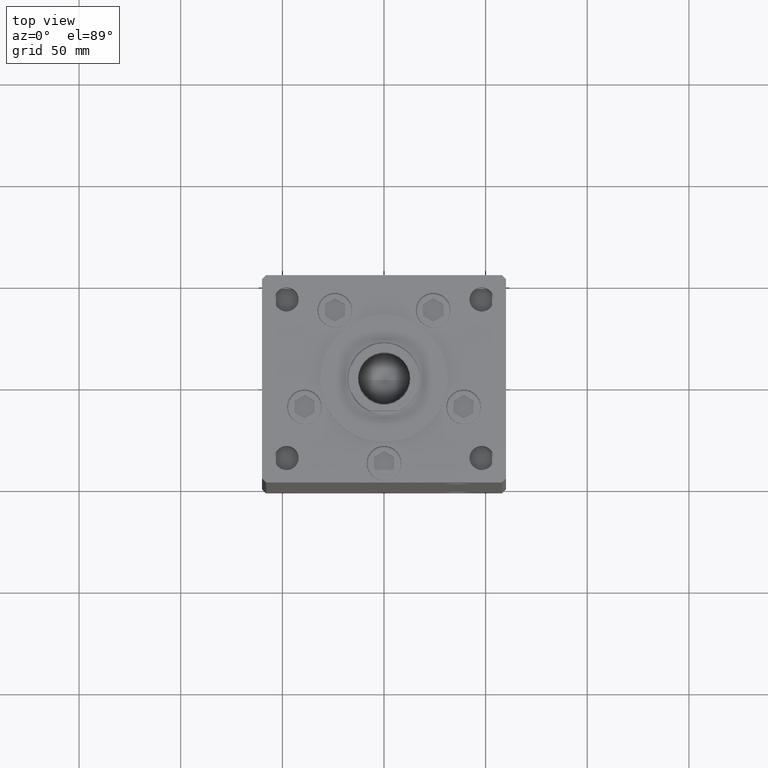
[diagram: clean part render]
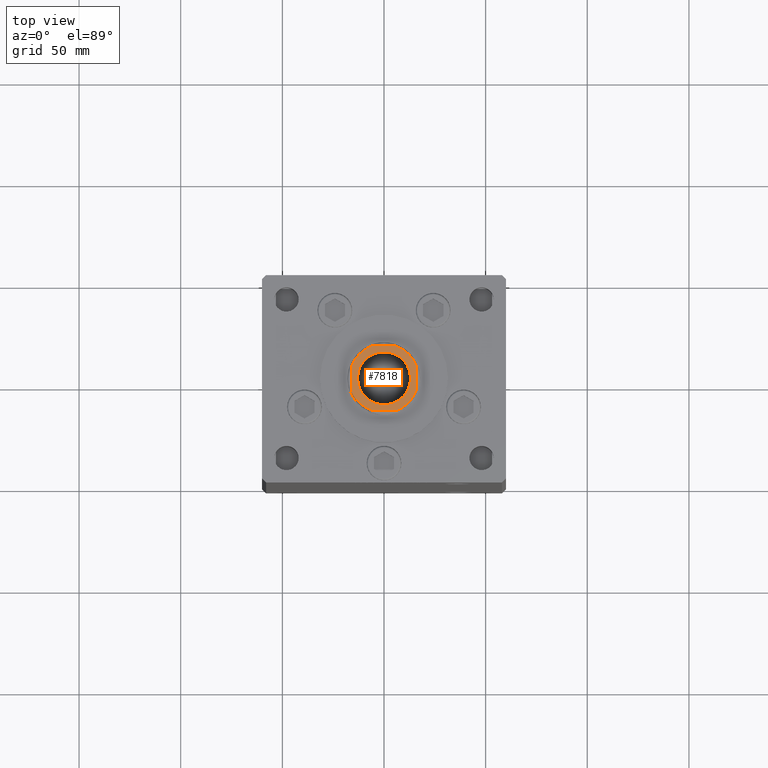
[diagram: same view with one face highlighted and labeled with its STEP entity id]
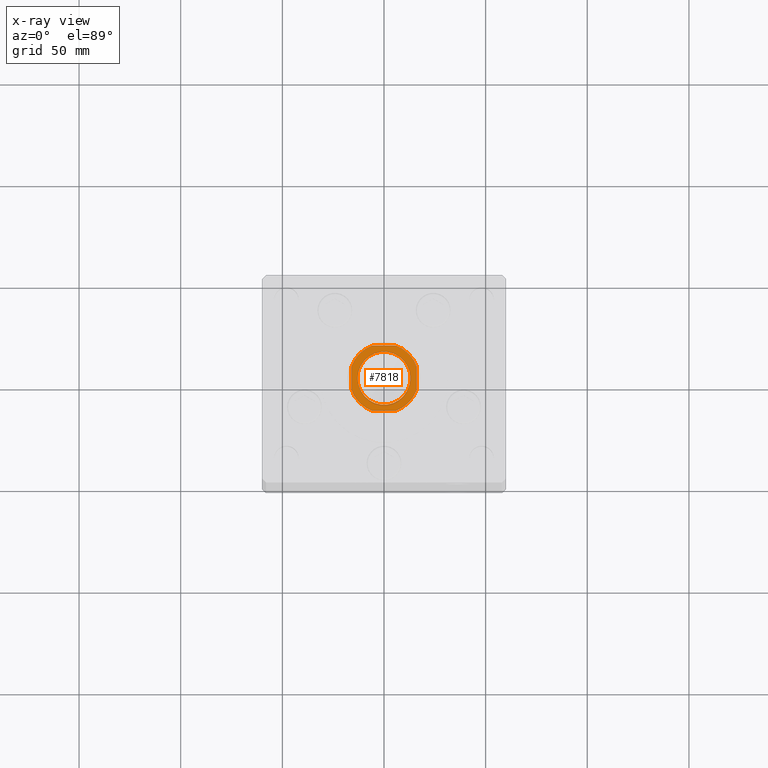
[diagram: x-ray of the same camera — body ghosted, the highlighted face saturated]
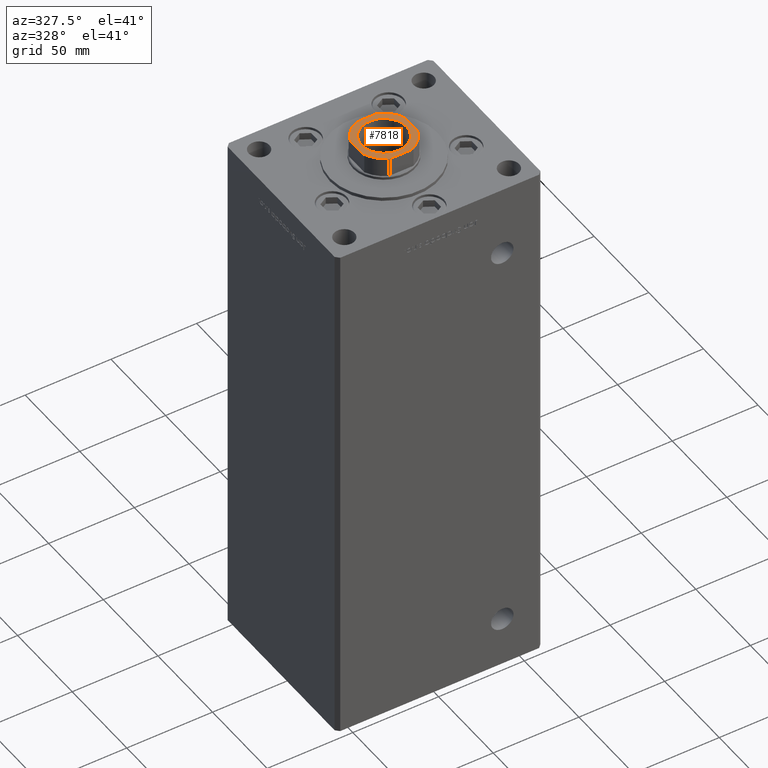
[diagram: same view with one face highlighted and labeled with its STEP entity id]
A machine part, top view. The second image highlights one B-rep face of the part: STEP entity #7818.
The next image is the same camera in x-ray: the body ghosted, the highlighted face saturated — about 0% of this face is hidden behind the body in this view.
A second angle (auxiliary view) of the same face is appended — the face is thin or edge-on in the first view.
In plain terms, the highlighted planar face has unit normal (0, 0, 1).
Its self-contained STEP definition (entity closure, byte-faithful):
#195 = CARTESIAN_POINT ( 'NONE',  ( 0.000000000000000000, 0.000000000000000000, 289.2500000000000000 ) ) ;
#650 = VERTEX_POINT ( 'NONE', #8844 ) ;
#1242 = CARTESIAN_POINT ( 'NONE',  ( 5.744562646538033057, 16.00000000000000000, 289.2500000000000000 ) ) ;
#1703 = EDGE_CURVE ( 'NONE', #43745, #49189, #43602, .T. ) ;
#2256 = CARTESIAN_POINT ( 'NONE',  ( 0.000000000000000000, 0.000000000000000000, 289.2500000000000000 ) ) ;
#4134 = CARTESIAN_POINT ( 'NONE',  ( -16.00000000000000000, 5.744562646538029504, 289.2500000000000000 ) ) ;
#4873 = DIRECTION ( 'NONE',  ( 1.000000000000000000, 0.000000000000000000, 0.000000000000000000 ) ) ;
#5690 = DIRECTION ( 'NONE',  ( 1.000000000000000000, 0.000000000000000000, 0.000000000000000000 ) ) ;
#5700 = DIRECTION ( 'NONE',  ( 1.084202172485504434E-16, -1.000000000000000000, 0.000000000000000000 ) ) ;
#5869 = EDGE_CURVE ( 'NONE', #39524, #38057, #15095, .T. ) ;
#5897 = CARTESIAN_POINT ( 'NONE',  ( 0.000000000000000000, 0.000000000000000000, 289.2500000000000000 ) ) ;
#6423 = DIRECTION ( 'NONE',  ( -0.000000000000000000, 0.000000000000000000, 1.000000000000000000 ) ) ;
#6856 = LINE ( 'NONE', #34043, #25308 ) ;
#7818 = ADVANCED_FACE ( 'NONE', ( #15587, #19820 ), #51704, .T. ) ;
#8844 = CARTESIAN_POINT ( 'NONE',  ( 13.05000000000005933, 0.000000000000000000, 289.2500000000000000 ) ) ;
#8885 = LINE ( 'NONE', #24972, #32647 ) ;
#9401 = VERTEX_POINT ( 'NONE', #18910 ) ;
#10575 = AXIS2_PLACEMENT_3D ( 'NONE', #30942, #6423, #38850 ) ;
#10684 = AXIS2_PLACEMENT_3D ( 'NONE', #5897, #21989, #38049 ) ;
#11172 = CARTESIAN_POINT ( 'NONE',  ( -5.744562646538033945, 16.00000000000000000, 289.2500000000000000 ) ) ;
#11435 = CARTESIAN_POINT ( 'NONE',  ( -16.00000000000000000, 15.99999999999999645, 289.2500000000000000 ) ) ;
#12332 = DIRECTION ( 'NONE',  ( 1.000000000000000000, 0.000000000000000000, 0.000000000000000000 ) ) ;
#12785 = ORIENTED_EDGE ( 'NONE', *, *, #19416, .T. ) ;
#13290 = CIRCLE ( 'NONE', #43581, 17.00000000000000000 ) ;
#15095 = CIRCLE ( 'NONE', #31991, 17.00000000000000000 ) ;
#15587 = FACE_BOUND ( 'NONE', #37504, .T. ) ;
#15848 = DIRECTION ( 'NONE',  ( 1.000000000000000000, 0.000000000000000000, 0.000000000000000000 ) ) ;
#17046 = DIRECTION ( 'NONE',  ( 0.000000000000000000, -0.000000000000000000, -1.000000000000000000 ) ) ;
#17905 = EDGE_CURVE ( 'NONE', #650, #42932, #45888, .T. ) ;
#17968 = DIRECTION ( 'NONE',  ( 1.000000000000000000, 1.084202172485504434E-16, 0.000000000000000000 ) ) ;
#18639 = EDGE_CURVE ( 'NONE', #9401, #43745, #24042, .T. ) ;
#18910 = CARTESIAN_POINT ( 'NONE',  ( 16.00000000000000000, 5.744562646538033945, 289.2500000000000000 ) ) ;
#19416 = EDGE_CURVE ( 'NONE', #49189, #24245, #21526, .T. ) ;
#19741 = CARTESIAN_POINT ( 'NONE',  ( 0.000000000000000000, 0.000000000000000000, 289.2500000000000000 ) ) ;
#19820 = FACE_OUTER_BOUND ( 'NONE', #47235, .T. ) ;
#21526 = CIRCLE ( 'NONE', #10575, 17.00000000000000000 ) ;
#21673 = ORIENTED_EDGE ( 'NONE', *, *, #30324, .T. ) ;
#21989 = DIRECTION ( 'NONE',  ( 0.000000000000000000, -0.000000000000000000, -1.000000000000000000 ) ) ;
#23511 = DIRECTION ( 'NONE',  ( -0.000000000000000000, 0.000000000000000000, 1.000000000000000000 ) ) ;
#24042 = CIRCLE ( 'NONE', #50956, 17.00000000000000000 ) ;
#24245 = VERTEX_POINT ( 'NONE', #4134 ) ;
#24850 = DIRECTION ( 'NONE',  ( -1.084202172485504434E-16, 1.000000000000000000, -0.000000000000000000 ) ) ;
#24972 = CARTESIAN_POINT ( 'NONE',  ( -16.00000000000000000, 15.99999999999999645, 289.2500000000000000 ) ) ;
#25091 = VECTOR ( 'NONE', #51518, 1000.000000000000000 ) ;
#25308 = VECTOR ( 'NONE', #17968, 1000.000000000000000 ) ;
#25897 = ORIENTED_EDGE ( 'NONE', *, *, #44553, .T. ) ;
#26296 = EDGE_CURVE ( 'NONE', #24245, #39524, #8885, .T. ) ;
#28352 = EDGE_CURVE ( 'NONE', #42932, #650, #37637, .T. ) ;
#28871 = CARTESIAN_POINT ( 'NONE',  ( 0.000000000000000000, 0.000000000000000000, 289.2500000000000000 ) ) ;
#29628 = CARTESIAN_POINT ( 'NONE',  ( -13.05000000000005933, 1.598164072887303268E-15, 289.2500000000000000 ) ) ;
#30324 = EDGE_CURVE ( 'NONE', #38368, #35899, #13290, .T. ) ;
#30917 = ORIENTED_EDGE ( 'NONE', *, *, #18639, .T. ) ;
#30942 = CARTESIAN_POINT ( 'NONE',  ( 0.000000000000000000, 0.000000000000000000, 289.2500000000000000 ) ) ;
#31461 = ORIENTED_EDGE ( 'NONE', *, *, #5869, .T. ) ;
#31854 = ORIENTED_EDGE ( 'NONE', *, *, #1703, .T. ) ;
#31991 = AXIS2_PLACEMENT_3D ( 'NONE', #28871, #41246, #4873 ) ;
#32120 = ORIENTED_EDGE ( 'NONE', *, *, #28352, .T. ) ;
#32647 = VECTOR ( 'NONE', #5700, 1000.000000000000000 ) ;
#33542 = CARTESIAN_POINT ( 'NONE',  ( 16.00000000000000000, 16.00000000000000000, 289.2500000000000000 ) ) ;
#34043 = CARTESIAN_POINT ( 'NONE',  ( -15.99999999999999645, -16.00000000000000355, 289.2500000000000000 ) ) ;
#34953 = ORIENTED_EDGE ( 'NONE', *, *, #17905, .T. ) ;
#35899 = VERTEX_POINT ( 'NONE', #45717 ) ;
#36811 = DIRECTION ( 'NONE',  ( 1.000000000000000000, 0.000000000000000000, 0.000000000000000000 ) ) ;
#37504 = EDGE_LOOP ( 'NONE', ( #34953, #32120 ) ) ;
#37637 = CIRCLE ( 'NONE', #10684, 13.05000000000005933 ) ;
#37693 = CARTESIAN_POINT ( 'NONE',  ( -5.744562646538029504, -16.00000000000000355, 289.2500000000000000 ) ) ;
#38049 = DIRECTION ( 'NONE',  ( 1.000000000000000000, 0.000000000000000000, 0.000000000000000000 ) ) ;
#38057 = VERTEX_POINT ( 'NONE', #37693 ) ;
#38245 = EDGE_CURVE ( 'NONE', #38057, #38368, #6856, .T. ) ;
#38319 = AXIS2_PLACEMENT_3D ( 'NONE', #195, #17046, #36811 ) ;
#38368 = VERTEX_POINT ( 'NONE', #47706 ) ;
#38850 = DIRECTION ( 'NONE',  ( 1.000000000000000000, 0.000000000000000000, 0.000000000000000000 ) ) ;
#38944 = VECTOR ( 'NONE', #24850, 1000.000000000000000 ) ;
#39524 = VERTEX_POINT ( 'NONE', #50307 ) ;
#41246 = DIRECTION ( 'NONE',  ( -0.000000000000000000, 0.000000000000000000, 1.000000000000000000 ) ) ;
#42932 = VERTEX_POINT ( 'NONE', #29628 ) ;
#42947 = ORIENTED_EDGE ( 'NONE', *, *, #38245, .T. ) ;
#43581 = AXIS2_PLACEMENT_3D ( 'NONE', #19741, #43983, #12332 ) ;
#43602 = LINE ( 'NONE', #11435, #25091 ) ;
#43745 = VERTEX_POINT ( 'NONE', #1242 ) ;
#43983 = DIRECTION ( 'NONE',  ( -0.000000000000000000, 0.000000000000000000, 1.000000000000000000 ) ) ;
#44553 = EDGE_CURVE ( 'NONE', #35899, #9401, #48832, .T. ) ;
#45717 = CARTESIAN_POINT ( 'NONE',  ( 16.00000000000000355, -5.744562646538033057, 289.2500000000000000 ) ) ;
#45888 = CIRCLE ( 'NONE', #38319, 13.05000000000005933 ) ;
#46533 = DIRECTION ( 'NONE',  ( -0.000000000000000000, 0.000000000000000000, 1.000000000000000000 ) ) ;
#47235 = EDGE_LOOP ( 'NONE', ( #48353, #31461, #42947, #21673, #25897, #30917, #31854, #12785 ) ) ;
#47706 = CARTESIAN_POINT ( 'NONE',  ( 5.744562646538024175, -16.00000000000000355, 289.2500000000000000 ) ) ;
#48001 = AXIS2_PLACEMENT_3D ( 'NONE', #51965, #23511, #15848 ) ;
#48353 = ORIENTED_EDGE ( 'NONE', *, *, #26296, .T. ) ;
#48832 = LINE ( 'NONE', #33542, #38944 ) ;
#49189 = VERTEX_POINT ( 'NONE', #11172 ) ;
#50307 = CARTESIAN_POINT ( 'NONE',  ( -16.00000000000000000, -5.744562646538033945, 289.2500000000000000 ) ) ;
#50956 = AXIS2_PLACEMENT_3D ( 'NONE', #2256, #46533, #5690 ) ;
#51518 = DIRECTION ( 'NONE',  ( -1.000000000000000000, -1.084202172485504434E-16, -0.000000000000000000 ) ) ;
#51704 = PLANE ( 'NONE',  #48001 ) ;
#51965 = CARTESIAN_POINT ( 'NONE',  ( 0.000000000000000000, 0.000000000000000000, 289.2500000000000000 ) ) ;